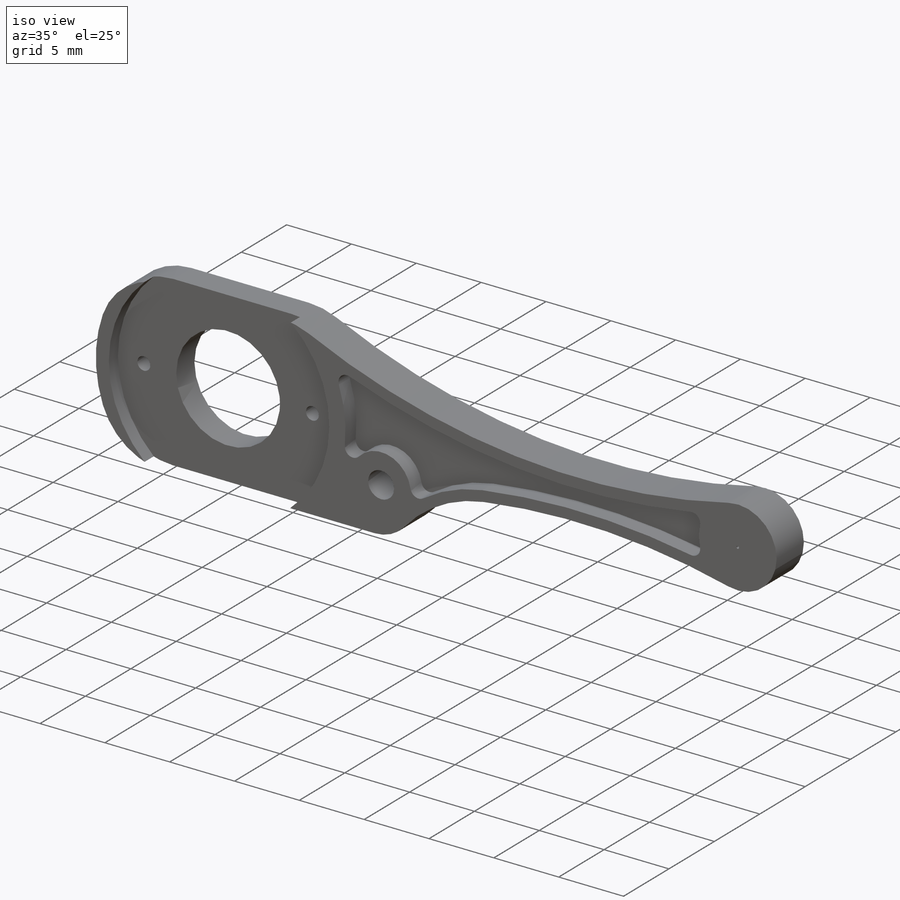
[diagram: iso view]
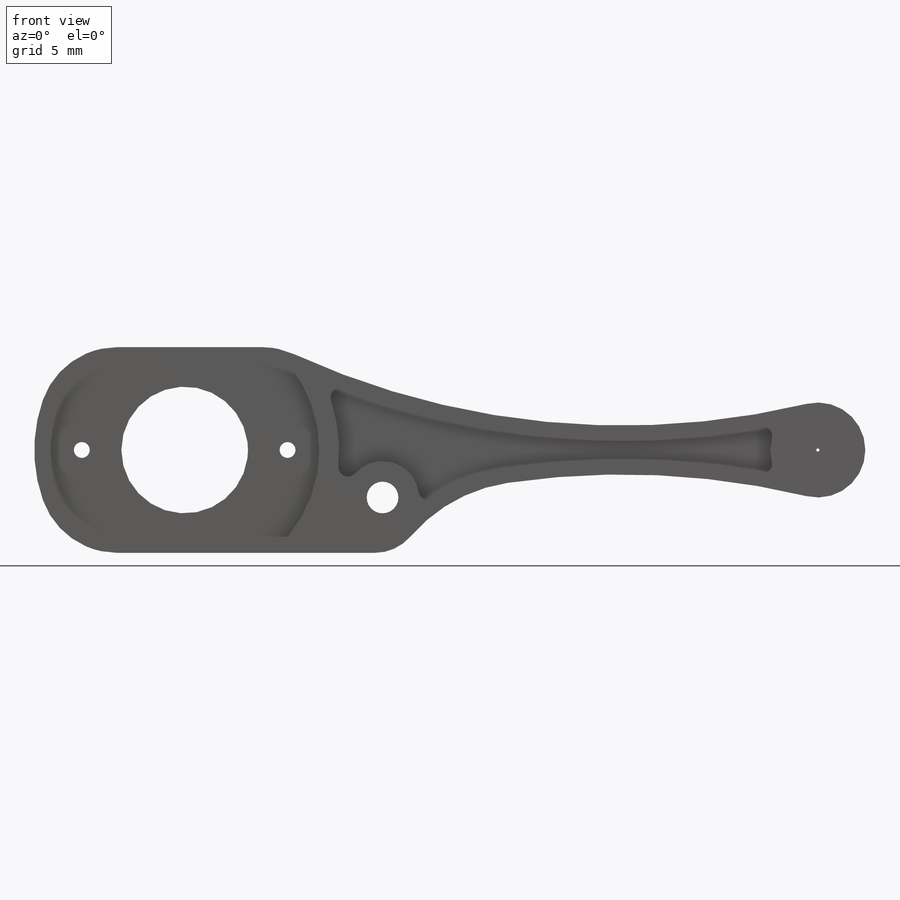
[diagram: front view]
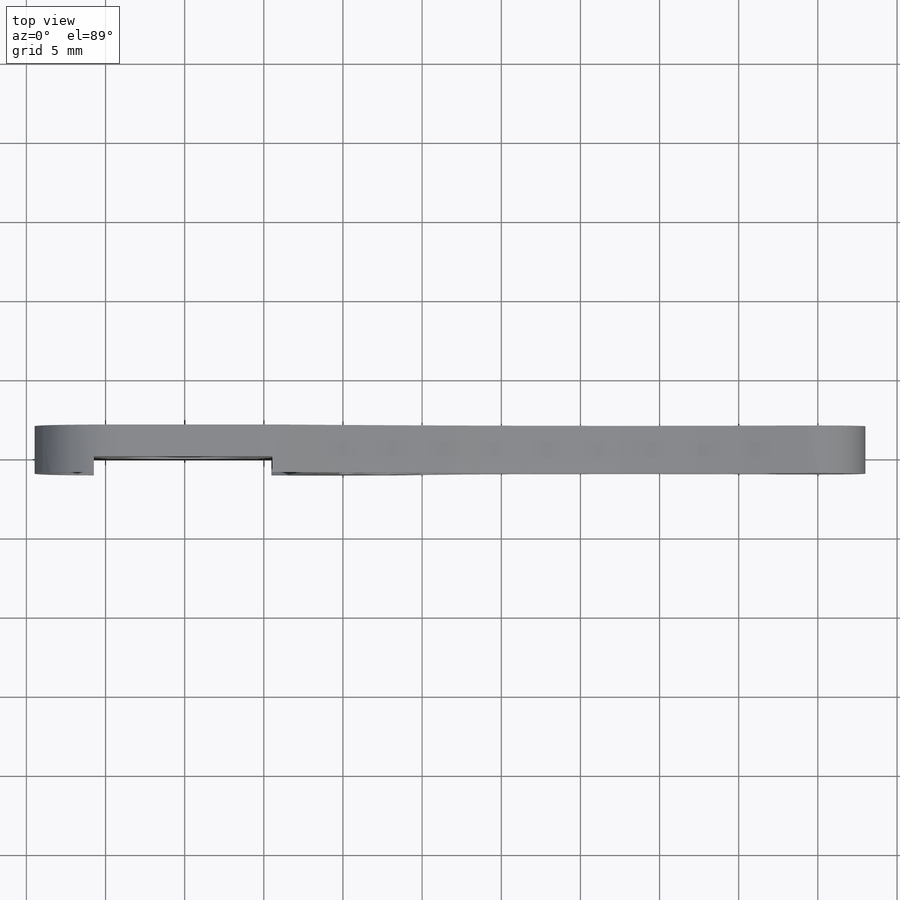
[diagram: top view]
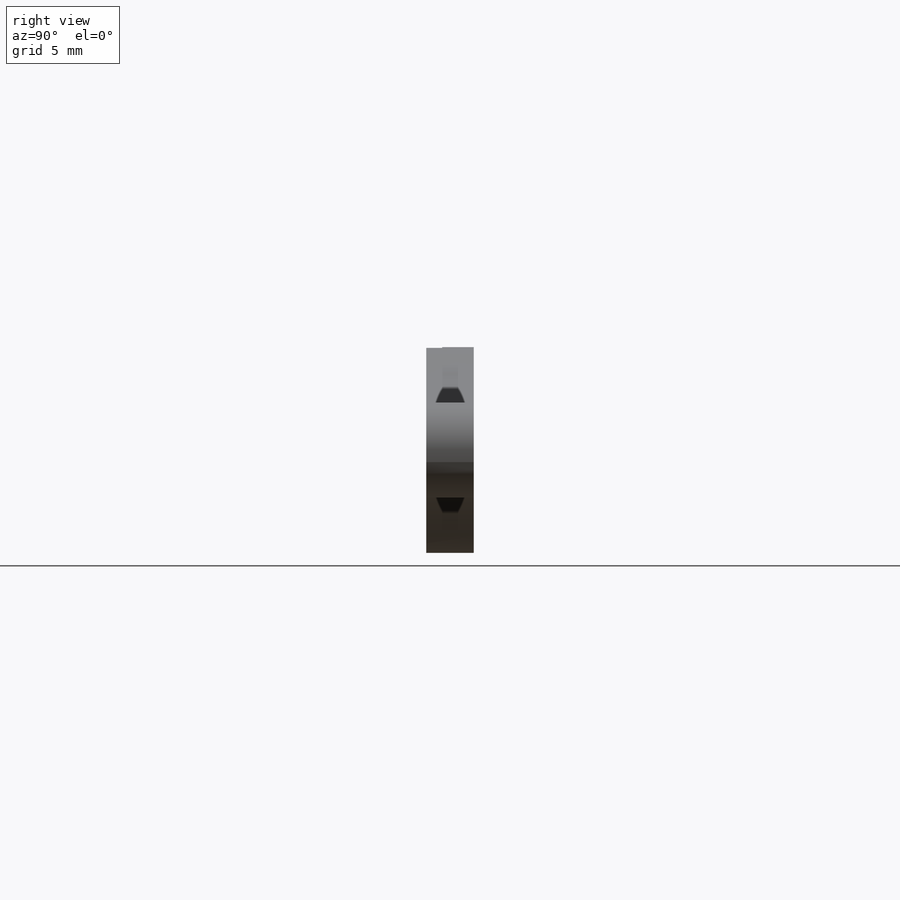
[diagram: right view]
SOLIDWORKS PART (.sldprt)
format: sldprt  version: not decoded by parser v0  size: 627,712 bytes
history: native  units: mm
features: sketch x19, extrude x6, cut_extrude x6, plane x4, hole x2, fillet x2, material x1, pattern_circular x1, cut_revolve x1, pattern_linear x1, mirror x1, delete_body x1 (+8 scaffold rows collapsed)
feature tree (53):
  scaffold x8  (default folders/planes/origin — collapsed)
  material  "ABS"
  plane  "Ebene vorne"
  plane  "Ebene oben"
  plane  "Ebene rechts"
  sketch  "Skizze1"  dims[c1.D1=0.2mm c1.D3=8.0mm c2.D1=~34.975044mm c2.D2=40.0mm c2.D3=~96.70613mm c3.D1=~21.741243mm]
  extrude  "Linear austragen1"  Depth=3mm
  hole  "Ø1.0 (1) Diameter Hole1"  Diameter=1mm Depth=3mm
  sketch  "Skizze3"  dims[D1=13.0mm]
  sketch  "Skizze2"  dims[hole-wizard template sketch: 59 standard entries collapsed; hole parameters kept: c18.Thru Hole Dia.=1.0mm c18.Thru Hole Depth=3.0mm]
  hole  "Ø2.0 (2) Diameter Hole1"  Diameter=2mm Depth=3mm
  sketch  "Skizze6"  dims[D1=12.5mm D2=3.0mm]
  sketch  "Skizze5"  dims[hole-wizard template sketch: 59 standard entries collapsed; hole parameters kept: c18.Bohrerdurchmesser=2.0mm c18.Bohrungstiefe=3.0mm]
  sketch  "Skizze7"  dims[D1=17.0mm]
  cut_extrude  "Schnitt-Linear austragen1"  Depth=1mm
  extrude  "Extrude1"  [1 undecoded]
  sketch  "Skizze7<2>"  dims[D1=1.0mm]
  sketch  "Skizze8"  dims[c1.D1=6.0mm c1.D2=100.0mm c1.D4=5.0mm c1.D5=10.0mm c1.D6=3.0mm c1.D8=11.5mm c2.D2=~1.393158mm c2.D5=1.0mm c3.D2=~1.789135mm c3.D5=1.0mm c3.D3=6.5mm c3.D4=~9.891626mm c4.D5=1.0mm c4.D8=1.0mm c4.D7=0.5mm c5.D8=1.0mm]
  cut_extrude  "Schnitt-Linear austragen2"  [1 undecoded]
  sketch  "Skizze10"  dims[D2=1.25mm D1=0.8mm]
  cut_extrude  "Schnitt-Linear austragen3"  Depth=1.2mm
  plane  "Ebene1"  Offset=1.5mm
  sketch  "Skizze12"  dims[D3=1.0mm D1=0.0mm D2=0.8mm]
  cut_extrude  "Schnitt-Linear austragen4"  Depth=1.2mm
  sketch  "Skizze13"  dims[c1.D1=~2.235666mm c2.D1=40.0deg c3.D1=~2.62809mm c4.D1=40.0deg c4.D2=0.1mm c5.D1=0.8mm]
  pattern_circular  "Kreismuster1"  Count=3 Angle=120deg
  sketch  "Skizze15"  dims[c1.D1=6.5mm c1.D2=1.2mm c2.D2=40.0deg c2.D3=0.6mm]
  cut_revolve  "Schnitt-Rotation1"  Angle=360deg
  pattern_linear  "Lineares Muster2"  Count1=2 Count2=1 Spacing1=14mm Spacing2=50mm
  fillet  "Verrundung5"  Radius=1mm
  fillet  "Fillet1"  Radius=1mm
  sketch  "Skizze17"  dims[D1=15.0mm D2=60.0mm D3=20.3mm D4=0.0mm]
  extrude  "Linear austragen2"  [1 undecoded]
  sketch  "Skizze18"  dims[c1.D2=2.5mm c1.D3=1.65mm c1.D1=0.0mm c2.D2=2.5mm]
  cut_extrude  "Schnitt-Linear austragen5"  [1 undecoded]
  sketch  "Skizze19"
  extrude  "Linear austragen3"  [1 undecoded]
  sketch  "Skizze20"
  extrude  "Linear austragen4"  [1 undecoded]
  sketch  "Skizze22"  dims[D1=0.0mm]
  extrude  "Linear austragen5"  [1 undecoded]
  sketch  "Skizze23"  dims[D1=12.0mm D2=38.0mm]
  cut_extrude  "Schnitt-Linear austragen7"  [1 undecoded]
  sketch  "Skizze21"  dims[c1.D1=12.0mm c1.D2=12.0mm c2.D2=90.0deg c3.D2=12.0mm c3.D3=50.0mm]
  mirror  "Mirror1"
  delete_body  "Body-Delete1"
decode coverage: 28 of 40 modeling features carry decoded parameters
note: ~ marks probable driven/reference dimensions
note: 8 parameter values undecoded
summary: no parameter record found for 8 features
note: suppression state not decoded; provenance and decode notes live in map.json
